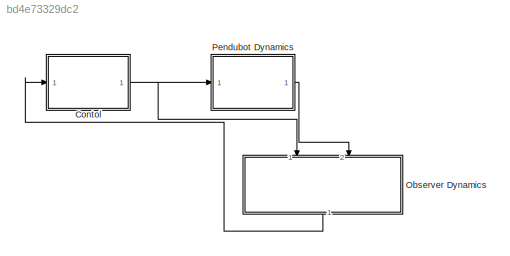
MODEL slx_bd4e73329dc2
KIND model
CONFIG AbsTol = 1e-4
CONFIG EnableMultiTasking = off
CONFIG FixedStep = 0.025
CONFIG MaxStep = 0.025
CONFIG MinStep = auto
CONFIG RelTol = 1e-4
CONFIG SampleTimeConstraint = Unconstrained
CONFIG Solver = ode45
CONFIG SolverName = ode45
CONFIG StartTime = 0.0
CONFIG StopTime = sim_time
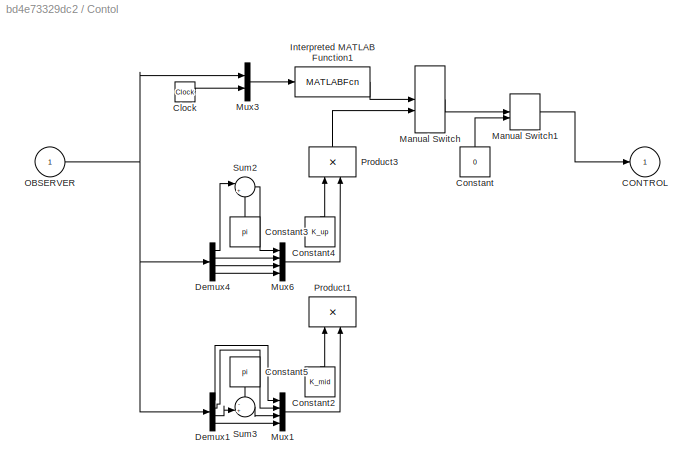
BLOCK [SubSystem] Contol
  Ports = [1, 1]
  RequestExecContextInheritance = off
BLOCK [Outport] Contol/CONTROL
  IconDisplay = Port number
BLOCK [Clock] Contol/Clock
BLOCK [Constant] Contol/Constant
  Value = 0
BLOCK [Constant] Contol/Constant2
  Commented = on
  Value = K_mid
  VectorParams1D = off
BLOCK [Constant] Contol/Constant3
  Value = pi
  VectorParams1D = off
BLOCK [Constant] Contol/Constant4
  Value = K_up
  VectorParams1D = off
BLOCK [Constant] Contol/Constant5
  Commented = on
  Value = pi
  VectorParams1D = off
BLOCK [Demux] Contol/Demux1
  Commented = on
  DisplayOption = bar
  Ports = [1, 4]
BLOCK [Demux] Contol/Demux4
  DisplayOption = bar
  Ports = [1, 4]
BLOCK [MATLABFcn] Contol/Interpreted MATLAB Function1
  MATLABFcn = pendubot_control(u(1), u(2), u(3), u(4), u(5), theta)
  OutputDimensions = 1
  Ports = [1, 1]
BLOCK [ManualSwitch] Contol/Manual Switch
  CurrentSetting = 0
BLOCK [ManualSwitch] Contol/Manual Switch1
BLOCK [Mux] Contol/Mux1
  Commented = on
  DisplayOption = bar
  Ports = [4, 1]
BLOCK [Mux] Contol/Mux3
  DisplayOption = bar
  Inputs = 2
  Ports = [2, 1]
BLOCK [Mux] Contol/Mux6
  DisplayOption = bar
  Ports = [4, 1]
BLOCK [Inport] Contol/OBSERVER
  IconDisplay = Port number
BLOCK [Product] Contol/Product1
  Commented = on
  InputSameDT = off
  Multiplication = Matrix(*)
  OutDataTypeStr = Inherit: Inherit via internal rule
  Ports = [2, 1]
  RndMeth = Floor
  SaturateOnIntegerOverflow = off
BLOCK [Product] Contol/Product3
  InputSameDT = off
  Multiplication = Matrix(*)
  OutDataTypeStr = Inherit: Inherit via internal rule
  Ports = [2, 1]
  RndMeth = Floor
  SaturateOnIntegerOverflow = off
BLOCK [Sum] Contol/Sum2
  IconShape = round
  InputSameDT = off
  Inputs = |+-
  OutDataTypeStr = Inherit: Inherit via internal rule
  Ports = [2, 1]
  SaturateOnIntegerOverflow = off
BLOCK [Sum] Contol/Sum3
  Commented = on
  IconShape = round
  InputSameDT = off
  Inputs = -+|
  OutDataTypeStr = Inherit: Inherit via internal rule
  Ports = [2, 1]
  SaturateOnIntegerOverflow = off
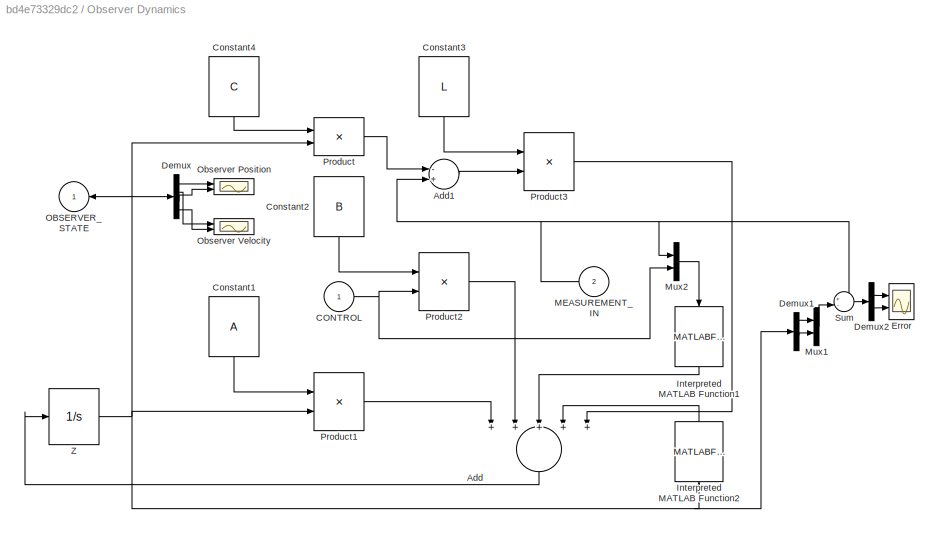
BLOCK [SubSystem] Observer Dynamics
  Ports = [2, 1]
  RequestExecContextInheritance = off
BLOCK [Sum] Observer Dynamics/Add
  InputSameDT = off
  Inputs = +++++
  OutDataTypeStr = Inherit: Inherit via internal rule
  Ports = [5, 1]
  SaturateOnIntegerOverflow = off
BLOCK [Sum] Observer Dynamics/Add1
  InputSameDT = off
  Inputs = -+
  OutDataTypeStr = Inherit: Inherit via internal rule
  Ports = [2, 1]
  SaturateOnIntegerOverflow = off
BLOCK [Inport] Observer Dynamics/CONTROL
  IconDisplay = Port number
BLOCK [Constant] Observer Dynamics/Constant1
  Value = A
  VectorParams1D = off
BLOCK [Constant] Observer Dynamics/Constant2
  Value = B
  VectorParams1D = off
BLOCK [Constant] Observer Dynamics/Constant3
  Value = L
  VectorParams1D = off
BLOCK [Constant] Observer Dynamics/Constant4
  Value = C
  VectorParams1D = off
BLOCK [Demux] Observer Dynamics/Demux
  DisplayOption = bar
  Ports = [1, 4]
BLOCK [Demux] Observer Dynamics/Demux1
  DisplayOption = bar
  Ports = [1, 4]
BLOCK [Demux] Observer Dynamics/Demux2
  DisplayOption = bar
  Outputs = 2
  Ports = [1, 2]
BLOCK [Scope] Observer Dynamics/Error
  Floating = off
  NumInputPorts = 2
  Ports = [2]
  ScopeSpecificationString = Simulink.scopes.TimeScopeBlockCfg('CurrentConfiguration', extmgr.ConfigurationSet(extmgr.Configuration('Core','General UI',true,'FigureColor',[1 1 1],'ShowStatusbar',false),extmgr.Configuration('Core','Source UI',true),extmgr.Configuration('Sources','WiredSimulink',true,'DataLoggingVariableName','ScopeData1'),extmgr.Configuration('Visuals','Time Domain',true,'SerializedDisplays',{struct('MinYLimRe...<+3088ch>
BLOCK [MATLABFcn] Observer Dynamics/Interpreted MATLAB Function1
  MATLABFcn = observ_func([u(1), u(2)], u(3), theta)
  Output1D = off
  OutputDimensions = 4
  Ports = [1, 1]
BLOCK [MATLABFcn] Observer Dynamics/Interpreted MATLAB Function2
  MATLABFcn = lips_func([u(1), u(2), u(3), u(4)], theta)
  Output1D = off
  OutputDimensions = 4
  Ports = [1, 1]
BLOCK [Inport] Observer Dynamics/MEASUREMENT_IN
  IconDisplay = Port number
  Port = 2
BLOCK [Mux] Observer Dynamics/Mux1
  DisplayOption = bar
  Inputs = 2
  Ports = [2, 1]
BLOCK [Mux] Observer Dynamics/Mux2
  DisplayOption = bar
  Inputs = 2
  Ports = [2, 1]
BLOCK [Outport] Observer Dynamics/OBSERVER_STATE
  IconDisplay = Port number
BLOCK [Scope] Observer Dynamics/Observer Position
  Floating = off
  NumInputPorts = 2
  Ports = [2]
  ScopeSpecificationString = Simulink.scopes.TimeScopeBlockCfg('CurrentConfiguration', extmgr.ConfigurationSet(extmgr.Configuration('Core','General UI',true,'FigureColor',[1 1 1],'ShowStatusbar',false),extmgr.Configuration('Core','Source UI',true),extmgr.Configuration('Sources','WiredSimulink',true,'DataLoggingVariableName','ScopeData1'),extmgr.Configuration('Visuals','Time Domain',true,'SerializedDisplays',{struct('MinYLimRe...<+3093ch>
BLOCK [Scope] Observer Dynamics/Observer Velocity
  Floating = off
  NumInputPorts = 2
  Ports = [2]
  ScopeSpecificationString = Simulink.scopes.TimeScopeBlockCfg('CurrentConfiguration', extmgr.ConfigurationSet(extmgr.Configuration('Core','General UI',true,'FigureColor',[1 1 1],'ShowStatusbar',false),extmgr.Configuration('Core','Source UI',true),extmgr.Configuration('Sources','WiredSimulink',true,'DataLoggingVariableName','ScopeData1'),extmgr.Configuration('Visuals','Time Domain',true,'SerializedDisplays',{struct('MinYLimRe...<+3099ch>
BLOCK [Product] Observer Dynamics/Product
  InputSameDT = off
  Multiplication = Matrix(*)
  OutDataTypeStr = Inherit: Inherit via internal rule
  Ports = [2, 1]
  RndMeth = Floor
  SaturateOnIntegerOverflow = off
BLOCK [Product] Observer Dynamics/Product1
  InputSameDT = off
  Multiplication = Matrix(*)
  OutDataTypeStr = Inherit: Inherit via internal rule
  Ports = [2, 1]
  RndMeth = Floor
  SaturateOnIntegerOverflow = off
BLOCK [Product] Observer Dynamics/Product2
  InputSameDT = off
  Multiplication = Matrix(*)
  OutDataTypeStr = Inherit: Inherit via internal rule
  Ports = [2, 1]
  RndMeth = Floor
  SaturateOnIntegerOverflow = off
BLOCK [Product] Observer Dynamics/Product3
  InputSameDT = off
  Multiplication = Matrix(*)
  OutDataTypeStr = Inherit: Inherit via internal rule
  Ports = [2, 1]
  RndMeth = Floor
  SaturateOnIntegerOverflow = off
BLOCK [Sum] Observer Dynamics/Sum
  IconShape = round
  InputSameDT = off
  Inputs = +-
  OutDataTypeStr = Inherit: Inherit via internal rule
  Ports = [2, 1]
  SaturateOnIntegerOverflow = off
BLOCK [Integrator] Observer Dynamics/Z
  InitialCondition = Z0
  Ports = [1, 1]
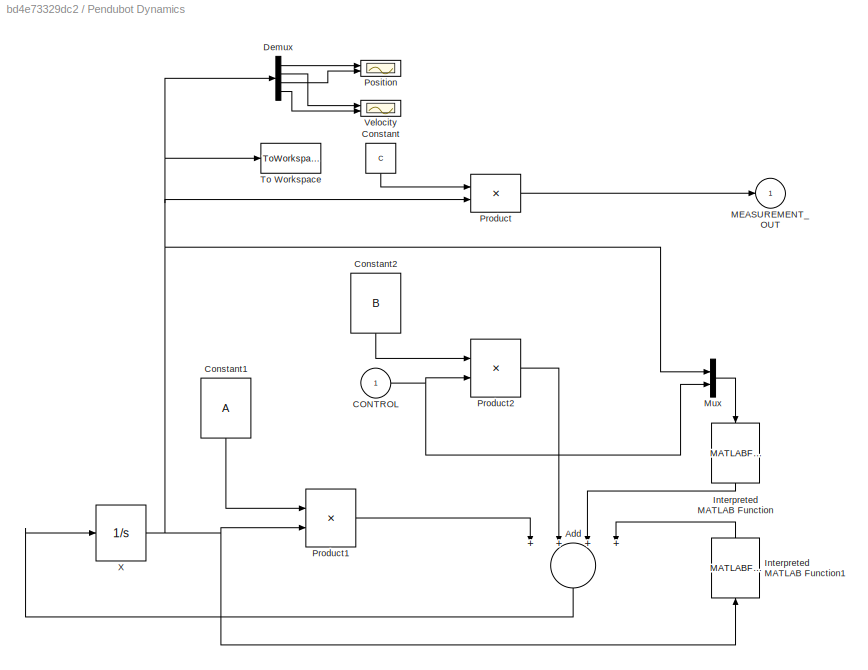
BLOCK [SubSystem] Pendubot Dynamics
  Ports = [1, 1]
  RequestExecContextInheritance = off
BLOCK [Sum] Pendubot Dynamics/Add
  InputSameDT = off
  Inputs = ++++
  OutDataTypeStr = Inherit: Inherit via internal rule
  Ports = [4, 1]
  SaturateOnIntegerOverflow = off
BLOCK [Inport] Pendubot Dynamics/CONTROL
  IconDisplay = Port number
BLOCK [Constant] Pendubot Dynamics/Constant
  Value = C
  VectorParams1D = off
BLOCK [Constant] Pendubot Dynamics/Constant1
  Value = A
  VectorParams1D = off
BLOCK [Constant] Pendubot Dynamics/Constant2
  Value = B
  VectorParams1D = off
BLOCK [Demux] Pendubot Dynamics/Demux
  DisplayOption = bar
  Ports = [1, 4]
BLOCK [MATLABFcn] Pendubot Dynamics/Interpreted MATLAB Function
  MATLABFcn = observ_func([u(1), u(3)], u(5), theta)
  Output1D = off
  OutputDimensions = 4
  Ports = [1, 1]
BLOCK [MATLABFcn] Pendubot Dynamics/Interpreted MATLAB Function1
  MATLABFcn = lips_func([u(1), u(2), u(3), u(4)], theta)
  Output1D = off
  OutputDimensions = 4
  Ports = [1, 1]
BLOCK [Outport] Pendubot Dynamics/MEASUREMENT_OUT
  IconDisplay = Port number
BLOCK [Mux] Pendubot Dynamics/Mux
  DisplayOption = bar
  Inputs = 2
  Ports = [2, 1]
BLOCK [Scope] Pendubot Dynamics/Position
  Floating = off
  NumInputPorts = 2
  Ports = [2]
  ScopeSpecificationString = Simulink.scopes.TimeScopeBlockCfg('CurrentConfiguration', extmgr.ConfigurationSet(extmgr.Configuration('Core','General UI',true,'FigureColor',[1 1 1],'ShowStatusbar',false),extmgr.Configuration('Core','Source UI',true),extmgr.Configuration('Sources','WiredSimulink',true,'DataLoggingVariableName','ScopeData2'),extmgr.Configuration('Visuals','Time Domain',true,'SerializedDisplays',{struct('MinYLimRe...<+3092ch>
BLOCK [Product] Pendubot Dynamics/Product
  InputSameDT = off
  Multiplication = Matrix(*)
  OutDataTypeStr = Inherit: Inherit via internal rule
  Ports = [2, 1]
  RndMeth = Floor
  SaturateOnIntegerOverflow = off
BLOCK [Product] Pendubot Dynamics/Product1
  InputSameDT = off
  Multiplication = Matrix(*)
  OutDataTypeStr = Inherit: Inherit via internal rule
  Ports = [2, 1]
  RndMeth = Floor
  SaturateOnIntegerOverflow = off
BLOCK [Product] Pendubot Dynamics/Product2
  InputSameDT = off
  Multiplication = Matrix(*)
  OutDataTypeStr = Inherit: Inherit via internal rule
  Ports = [2, 1]
  RndMeth = Floor
  SaturateOnIntegerOverflow = off
BLOCK [ToWorkspace] Pendubot Dynamics/To Workspace
  FixptAsFi = on
  MaxDataPoints = inf
  Ports = [1]
  SampleTime = -1
  SaveFormat = Structure With Time
  VariableName = pend_out
BLOCK [Scope] Pendubot Dynamics/Velocity
  Floating = off
  NumInputPorts = 2
  Ports = [2]
  ScopeSpecificationString = Simulink.scopes.TimeScopeBlockCfg('CurrentConfiguration', extmgr.ConfigurationSet(extmgr.Configuration('Core','General UI',true,'FigureColor',[1 1 1],'ShowStatusbar',false),extmgr.Configuration('Core','Source UI',true),extmgr.Configuration('Sources','WiredSimulink',true,'DataLoggingVariableName','ScopeData3'),extmgr.Configuration('Visuals','Time Domain',true,'SerializedDisplays',{struct('MinYLimRe...<+3067ch>
BLOCK [Integrator] Pendubot Dynamics/X
  InitialCondition = X0
  Ports = [1, 1]
LINE Contol/Clock:1 -> Contol/Mux3:2
LINE Contol/Constant2:1 -> Contol/Product1:1
LINE Contol/Constant3:1 -> Contol/Sum2:2
LINE Contol/Constant4:1 -> Contol/Product3:1
LINE Contol/Constant5:1 -> Contol/Sum3:1
LINE Contol/Constant:1 -> Contol/Manual Switch1:2
LINE Contol/Demux1:1 -> Contol/Mux1:1
LINE Contol/Demux1:2 -> Contol/Mux1:2
LINE Contol/Demux1:3 -> Contol/Sum3:2
LINE Contol/Demux1:4 -> Contol/Mux1:4
LINE Contol/Demux4:1 -> Contol/Sum2:1
LINE Contol/Demux4:2 -> Contol/Mux6:2
LINE Contol/Demux4:3 -> Contol/Mux6:3
LINE Contol/Demux4:4 -> Contol/Mux6:4
LINE Contol/Interpreted MATLAB Function1:1 -> Contol/Manual Switch:1
LINE Contol/Manual Switch1:1 -> Contol/CONTROL:1
LINE Contol/Manual Switch:1 -> Contol/Manual Switch1:1
LINE Contol/Mux1:1 -> Contol/Product1:2
LINE Contol/Mux3:1 -> Contol/Interpreted MATLAB Function1:1
LINE Contol/Mux6:1 -> Contol/Product3:2
NET Contol/OBSERVER:1 -> Contol/Demux1:1, Contol/Demux4:1, Contol/Mux3:1
LINE Contol/Product3:1 -> Contol/Manual Switch:2
LINE Contol/Sum2:1 -> Contol/Mux6:1
LINE Contol/Sum3:1 -> Contol/Mux1:3
NET Contol:1 -> Observer Dynamics:1, Pendubot Dynamics:1
LINE Observer Dynamics/Add1:1 -> Observer Dynamics/Product3:2
LINE Observer Dynamics/Add:1 -> Observer Dynamics/Z:1
NET Observer Dynamics/CONTROL:1 -> Observer Dynamics/Mux2:2, Observer Dynamics/Product2:2
LINE Observer Dynamics/Constant1:1 -> Observer Dynamics/Product1:1
LINE Observer Dynamics/Constant2:1 -> Observer Dynamics/Product2:1
LINE Observer Dynamics/Constant3:1 -> Observer Dynamics/Product3:1
LINE Observer Dynamics/Constant4:1 -> Observer Dynamics/Product:1
LINE Observer Dynamics/Demux1:1 -> Observer Dynamics/Mux1:1
LINE Observer Dynamics/Demux1:3 -> Observer Dynamics/Mux1:2
LINE Observer Dynamics/Demux2:1 -> Observer Dynamics/Error:1
LINE Observer Dynamics/Demux2:2 -> Observer Dynamics/Error:2
LINE Observer Dynamics/Demux:1 -> Observer Dynamics/Observer Position:1
LINE Observer Dynamics/Demux:2 -> Observer Dynamics/Observer Velocity:1
LINE Observer Dynamics/Demux:3 -> Observer Dynamics/Observer Position:2
LINE Observer Dynamics/Demux:4 -> Observer Dynamics/Observer Velocity:2
LINE Observer Dynamics/Interpreted MATLAB Function1:1 -> Observer Dynamics/Add:3
LINE Observer Dynamics/Interpreted MATLAB Function2:1 -> Observer Dynamics/Add:4
NET Observer Dynamics/MEASUREMENT_IN:1 -> Observer Dynamics/Add1:2, Observer Dynamics/Mux2:1, Observer Dynamics/Sum:1
LINE Observer Dynamics/Mux1:1 -> Observer Dynamics/Sum:2
LINE Observer Dynamics/Mux2:1 -> Observer Dynamics/Interpreted MATLAB Function1:1
LINE Observer Dynamics/Product1:1 -> Observer Dynamics/Add:1
LINE Observer Dynamics/Product2:1 -> Observer Dynamics/Add:2
LINE Observer Dynamics/Product3:1 -> Observer Dynamics/Add:5
LINE Observer Dynamics/Product:1 -> Observer Dynamics/Add1:1
LINE Observer Dynamics/Sum:1 -> Observer Dynamics/Demux2:1
NET Observer Dynamics/Z:1 -> Observer Dynamics/Demux1:1, Observer Dynamics/Demux:1, Observer Dynamics/Interpreted MATLAB Function2:1, Observer Dynamics/OBSERVER_STATE:1, Observer Dynamics/Product1:2, Observer Dynamics/Product:2
LINE Observer Dynamics:1 -> Contol:1
LINE Pendubot Dynamics/Add:1 -> Pendubot Dynamics/X:1
NET Pendubot Dynamics/CONTROL:1 -> Pendubot Dynamics/Mux:2, Pendubot Dynamics/Product2:2
LINE Pendubot Dynamics/Constant1:1 -> Pendubot Dynamics/Product1:1
LINE Pendubot Dynamics/Constant2:1 -> Pendubot Dynamics/Product2:1
LINE Pendubot Dynamics/Constant:1 -> Pendubot Dynamics/Product:1
LINE Pendubot Dynamics/Demux:1 -> Pendubot Dynamics/Position:1
LINE Pendubot Dynamics/Demux:2 -> Pendubot Dynamics/Velocity:1
LINE Pendubot Dynamics/Demux:3 -> Pendubot Dynamics/Position:2
LINE Pendubot Dynamics/Demux:4 -> Pendubot Dynamics/Velocity:2
LINE Pendubot Dynamics/Interpreted MATLAB Function1:1 -> Pendubot Dynamics/Add:4
LINE Pendubot Dynamics/Interpreted MATLAB Function:1 -> Pendubot Dynamics/Add:3
LINE Pendubot Dynamics/Mux:1 -> Pendubot Dynamics/Interpreted MATLAB Function:1
LINE Pendubot Dynamics/Product1:1 -> Pendubot Dynamics/Add:1
LINE Pendubot Dynamics/Product2:1 -> Pendubot Dynamics/Add:2
LINE Pendubot Dynamics/Product:1 -> Pendubot Dynamics/MEASUREMENT_OUT:1
NET Pendubot Dynamics/X:1 -> Pendubot Dynamics/Demux:1, Pendubot Dynamics/Interpreted MATLAB Function1:1, Pendubot Dynamics/Mux:1, Pendubot Dynamics/Product1:2, Pendubot Dynamics/Product:2, Pendubot Dynamics/To Workspace:1
LINE Pendubot Dynamics:1 -> Observer Dynamics:2
note: NET lines group one-source signal fan-out (src -> all destinations, sorted); 1:1 wires keep LINE
